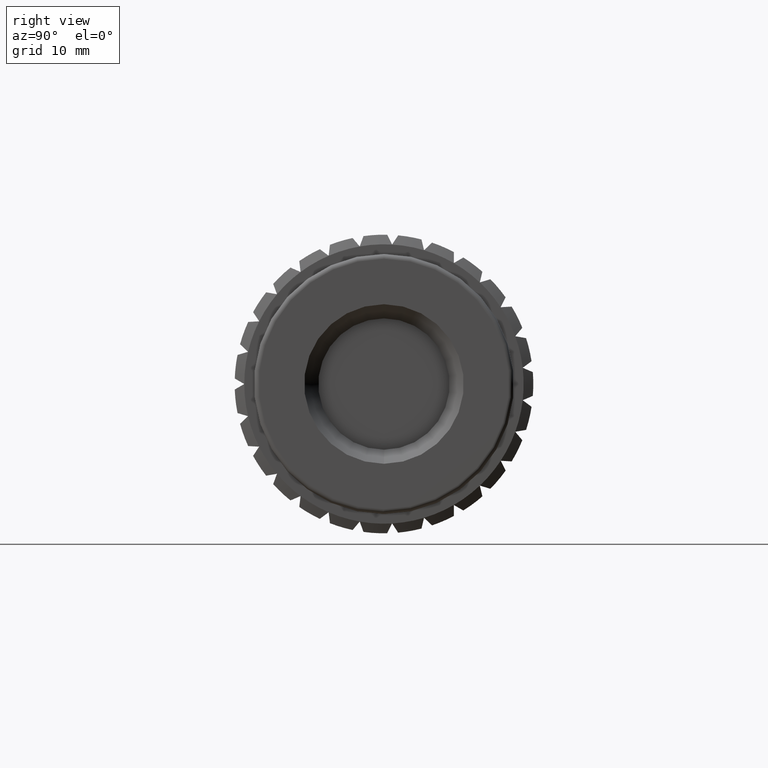
[diagram: clean part render]
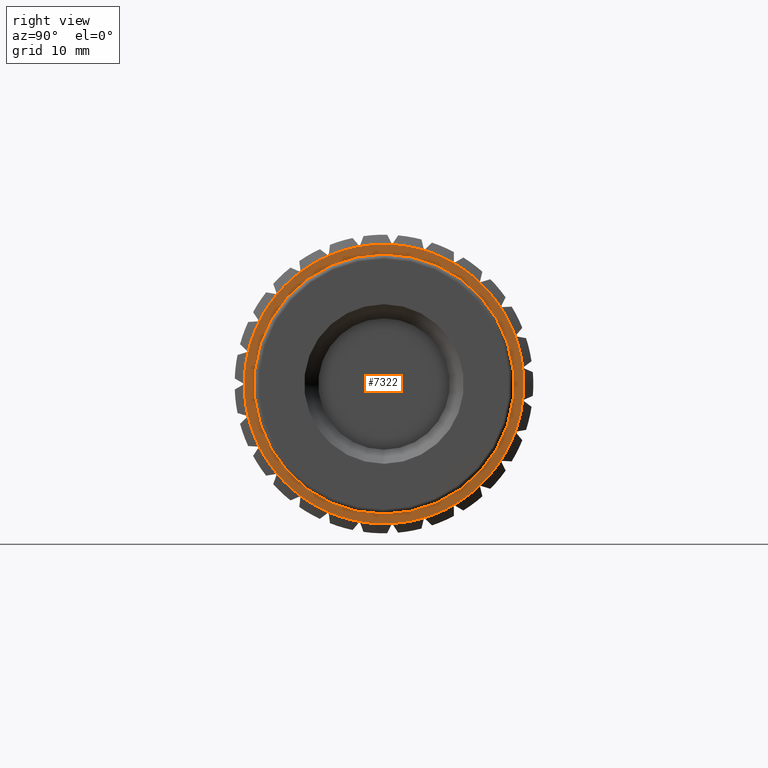
[diagram: same view with one face highlighted and labeled with its STEP entity id]
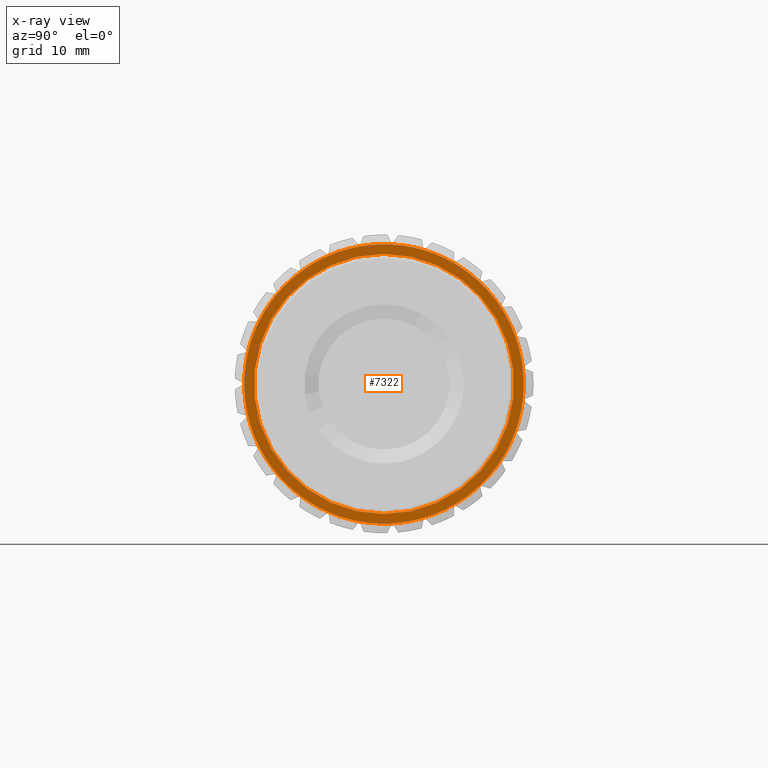
[diagram: x-ray of the same camera — body ghosted, the highlighted face saturated]
A machine part, right view. The second image highlights one B-rep face of the part: STEP entity #7322.
The next image is the same camera in x-ray: the body ghosted, the highlighted face saturated — about 0% of this face is hidden behind the body in this view.
In plain terms, the highlighted planar face has unit normal (-1, 0, 0).
Its self-contained STEP definition (entity closure, byte-faithful):
#1209=PLANE('',#7970);
#1440=FACE_BOUND('',#2182,.T.);
#1616=FACE_OUTER_BOUND('',#2181,.T.);
#2181=EDGE_LOOP('',(#5310,#5311,#5312,#5313,#5314,#5315,#5316,#5317,#5318,
#5319,#5320,#5321,#5322,#5323,#5324,#5325,#5326,#5327,#5328,#5329,#5330,
#5331,#5332,#5333,#5334,#5335,#5336));
#2182=EDGE_LOOP('',(#5337));
#2680=CIRCLE('',#7962,14.5);
#2681=CIRCLE('',#7964,14.5);
#2683=CIRCLE('',#7967,14.5);
#2684=CIRCLE('',#7969,14.5);
#2685=CIRCLE('',#7971,14.5);
#2686=CIRCLE('',#7972,14.5);
#2687=CIRCLE('',#7973,14.5);
#2688=CIRCLE('',#7974,14.5);
#2689=CIRCLE('',#7975,14.5);
#2690=CIRCLE('',#7976,14.5);
#2691=CIRCLE('',#7977,14.5);
#2692=CIRCLE('',#7978,14.5);
#2693=CIRCLE('',#7979,14.5);
#2694=CIRCLE('',#7980,14.5);
#2695=CIRCLE('',#7981,14.5);
#2696=CIRCLE('',#7982,14.5);
#2697=CIRCLE('',#7983,14.5);
#2698=CIRCLE('',#7984,14.5);
#2699=CIRCLE('',#7985,14.5);
#2700=CIRCLE('',#7986,14.5);
#2701=CIRCLE('',#7987,14.5);
#2702=CIRCLE('',#7988,14.5);
#2703=CIRCLE('',#7989,14.5);
#2704=CIRCLE('',#7990,14.5);
#2705=CIRCLE('',#7991,14.5);
#2706=CIRCLE('',#7992,14.5);
#2707=CIRCLE('',#7993,14.5);
#2708=CIRCLE('',#7994,13.5);
#2988=VERTEX_POINT('',#10921);
#3014=VERTEX_POINT('',#11042);
#3016=VERTEX_POINT('',#11056);
#3049=VERTEX_POINT('',#11213);
#3058=VERTEX_POINT('',#11263);
#3069=VERTEX_POINT('',#11317);
#3072=VERTEX_POINT('',#11336);
#3083=VERTEX_POINT('',#11386);
#3102=VERTEX_POINT('',#11467);
#3113=VERTEX_POINT('',#11514);
#3117=VERTEX_POINT('',#11529);
#3128=VERTEX_POINT('',#11584);
#3141=VERTEX_POINT('',#11643);
#3157=VERTEX_POINT('',#11710);
#3168=VERTEX_POINT('',#11757);
#3180=VERTEX_POINT('',#11820);
#3193=VERTEX_POINT('',#11879);
#3209=VERTEX_POINT('',#11946);
#3219=VERTEX_POINT('',#11997);
#3232=VERTEX_POINT('',#12056);
#3248=VERTEX_POINT('',#12123);
#3258=VERTEX_POINT('',#12174);
#3271=VERTEX_POINT('',#12233);
#3293=VERTEX_POINT('',#12336);
#3306=VERTEX_POINT('',#12395);
#3317=VERTEX_POINT('',#12442);
#3334=VERTEX_POINT('',#12524);
#3342=VERTEX_POINT('',#12609);
#4058=EDGE_CURVE('',#3058,#3069,#2680,.T.);
#4059=EDGE_CURVE('',#2988,#3058,#2681,.T.);
#4061=EDGE_CURVE('',#3069,#3072,#2683,.T.);
#4062=EDGE_CURVE('',#3113,#2988,#2684,.T.);
#4063=EDGE_CURVE('',#3014,#3016,#2685,.T.);
#4064=EDGE_CURVE('',#3016,#3317,#2686,.T.);
#4065=EDGE_CURVE('',#3317,#3248,#2687,.T.);
#4066=EDGE_CURVE('',#3248,#3209,#2688,.T.);
#4067=EDGE_CURVE('',#3209,#3157,#2689,.T.);
#4068=EDGE_CURVE('',#3157,#3117,#2690,.T.);
#4069=EDGE_CURVE('',#3117,#3113,#2691,.T.);
#4070=EDGE_CURVE('',#3072,#3083,#2692,.T.);
#4071=EDGE_CURVE('',#3083,#3102,#2693,.T.);
#4072=EDGE_CURVE('',#3102,#3128,#2694,.T.);
#4073=EDGE_CURVE('',#3128,#3168,#2695,.T.);
#4074=EDGE_CURVE('',#3168,#3141,#2696,.T.);
#4075=EDGE_CURVE('',#3141,#3180,#2697,.T.);
#4076=EDGE_CURVE('',#3180,#3193,#2698,.T.);
#4077=EDGE_CURVE('',#3193,#3219,#2699,.T.);
#4078=EDGE_CURVE('',#3219,#3232,#2700,.T.);
#4079=EDGE_CURVE('',#3232,#3258,#2701,.T.);
#4080=EDGE_CURVE('',#3258,#3271,#2702,.T.);
#4081=EDGE_CURVE('',#3271,#3293,#2703,.T.);
#4082=EDGE_CURVE('',#3293,#3306,#2704,.T.);
#4083=EDGE_CURVE('',#3306,#3334,#2705,.T.);
#4084=EDGE_CURVE('',#3334,#3049,#2706,.T.);
#4085=EDGE_CURVE('',#3049,#3014,#2707,.T.);
#4086=EDGE_CURVE('',#3342,#3342,#2708,.T.);
#5310=ORIENTED_EDGE('',*,*,#4063,.T.);
#5311=ORIENTED_EDGE('',*,*,#4064,.T.);
#5312=ORIENTED_EDGE('',*,*,#4065,.T.);
#5313=ORIENTED_EDGE('',*,*,#4066,.T.);
#5314=ORIENTED_EDGE('',*,*,#4067,.T.);
#5315=ORIENTED_EDGE('',*,*,#4068,.T.);
#5316=ORIENTED_EDGE('',*,*,#4069,.T.);
#5317=ORIENTED_EDGE('',*,*,#4062,.T.);
#5318=ORIENTED_EDGE('',*,*,#4059,.T.);
#5319=ORIENTED_EDGE('',*,*,#4058,.T.);
#5320=ORIENTED_EDGE('',*,*,#4061,.T.);
#5321=ORIENTED_EDGE('',*,*,#4070,.T.);
#5322=ORIENTED_EDGE('',*,*,#4071,.T.);
#5323=ORIENTED_EDGE('',*,*,#4072,.T.);
#5324=ORIENTED_EDGE('',*,*,#4073,.T.);
#5325=ORIENTED_EDGE('',*,*,#4074,.T.);
#5326=ORIENTED_EDGE('',*,*,#4075,.T.);
#5327=ORIENTED_EDGE('',*,*,#4076,.T.);
#5328=ORIENTED_EDGE('',*,*,#4077,.T.);
#5329=ORIENTED_EDGE('',*,*,#4078,.T.);
#5330=ORIENTED_EDGE('',*,*,#4079,.T.);
#5331=ORIENTED_EDGE('',*,*,#4080,.T.);
#5332=ORIENTED_EDGE('',*,*,#4081,.T.);
#5333=ORIENTED_EDGE('',*,*,#4082,.T.);
#5334=ORIENTED_EDGE('',*,*,#4083,.T.);
#5335=ORIENTED_EDGE('',*,*,#4084,.T.);
#5336=ORIENTED_EDGE('',*,*,#4085,.T.);
#5337=ORIENTED_EDGE('',*,*,#4086,.F.);
#7322=ADVANCED_FACE('',(#1616,#1440),#1209,.F.);
#7962=AXIS2_PLACEMENT_3D('',#12577,#9319,#9320);
#7964=AXIS2_PLACEMENT_3D('',#12579,#9323,#9324);
#7967=AXIS2_PLACEMENT_3D('',#12582,#9329,#9330);
#7969=AXIS2_PLACEMENT_3D('',#12584,#9333,#9334);
#7970=AXIS2_PLACEMENT_3D('',#12585,#9335,#9336);
#7971=AXIS2_PLACEMENT_3D('',#12586,#9337,#9338);
#7972=AXIS2_PLACEMENT_3D('',#12587,#9339,#9340);
#7973=AXIS2_PLACEMENT_3D('',#12588,#9341,#9342);
#7974=AXIS2_PLACEMENT_3D('',#12589,#9343,#9344);
#7975=AXIS2_PLACEMENT_3D('',#12590,#9345,#9346);
#7976=AXIS2_PLACEMENT_3D('',#12591,#9347,#9348);
#7977=AXIS2_PLACEMENT_3D('',#12592,#9349,#9350);
#7978=AXIS2_PLACEMENT_3D('',#12593,#9351,#9352);
#7979=AXIS2_PLACEMENT_3D('',#12594,#9353,#9354);
#7980=AXIS2_PLACEMENT_3D('',#12595,#9355,#9356);
#7981=AXIS2_PLACEMENT_3D('',#12596,#9357,#9358);
#7982=AXIS2_PLACEMENT_3D('',#12597,#9359,#9360);
#7983=AXIS2_PLACEMENT_3D('',#12598,#9361,#9362);
#7984=AXIS2_PLACEMENT_3D('',#12599,#9363,#9364);
#7985=AXIS2_PLACEMENT_3D('',#12600,#9365,#9366);
#7986=AXIS2_PLACEMENT_3D('',#12601,#9367,#9368);
#7987=AXIS2_PLACEMENT_3D('',#12602,#9369,#9370);
#7988=AXIS2_PLACEMENT_3D('',#12603,#9371,#9372);
#7989=AXIS2_PLACEMENT_3D('',#12604,#9373,#9374);
#7990=AXIS2_PLACEMENT_3D('',#12605,#9375,#9376);
#7991=AXIS2_PLACEMENT_3D('',#12606,#9377,#9378);
#7992=AXIS2_PLACEMENT_3D('',#12607,#9379,#9380);
#7993=AXIS2_PLACEMENT_3D('',#12608,#9381,#9382);
#7994=AXIS2_PLACEMENT_3D('',#12610,#9383,#9384);
#9319=DIRECTION('center_axis',(1.,0.,0.));
#9320=DIRECTION('ref_axis',(0.,0.,-1.));
#9323=DIRECTION('center_axis',(1.,0.,0.));
#9324=DIRECTION('ref_axis',(0.,0.,-1.));
#9329=DIRECTION('center_axis',(1.,0.,0.));
#9330=DIRECTION('ref_axis',(0.,0.,-1.));
#9333=DIRECTION('center_axis',(1.,0.,0.));
#9334=DIRECTION('ref_axis',(0.,0.,-1.));
#9335=DIRECTION('center_axis',(-1.,0.,0.));
#9336=DIRECTION('ref_axis',(0.,0.,1.));
#9337=DIRECTION('center_axis',(1.,0.,0.));
#9338=DIRECTION('ref_axis',(0.,0.,-1.));
#9339=DIRECTION('center_axis',(1.,0.,0.));
#9340=DIRECTION('ref_axis',(0.,0.,-1.));
#9341=DIRECTION('center_axis',(1.,0.,0.));
#9342=DIRECTION('ref_axis',(0.,0.,-1.));
#9343=DIRECTION('center_axis',(1.,0.,0.));
#9344=DIRECTION('ref_axis',(0.,0.,-1.));
#9345=DIRECTION('center_axis',(1.,0.,0.));
#9346=DIRECTION('ref_axis',(0.,0.,-1.));
#9347=DIRECTION('center_axis',(1.,0.,0.));
#9348=DIRECTION('ref_axis',(0.,0.,-1.));
#9349=DIRECTION('center_axis',(1.,0.,0.));
#9350=DIRECTION('ref_axis',(0.,0.,-1.));
#9351=DIRECTION('center_axis',(1.,0.,0.));
#9352=DIRECTION('ref_axis',(0.,0.,-1.));
#9353=DIRECTION('center_axis',(1.,0.,0.));
#9354=DIRECTION('ref_axis',(0.,0.,-1.));
#9355=DIRECTION('center_axis',(1.,0.,0.));
#9356=DIRECTION('ref_axis',(0.,0.,-1.));
#9357=DIRECTION('center_axis',(1.,0.,0.));
#9358=DIRECTION('ref_axis',(0.,0.,-1.));
#9359=DIRECTION('center_axis',(1.,0.,0.));
#9360=DIRECTION('ref_axis',(0.,0.,-1.));
#9361=DIRECTION('center_axis',(1.,0.,0.));
#9362=DIRECTION('ref_axis',(0.,0.,-1.));
#9363=DIRECTION('center_axis',(1.,0.,0.));
#9364=DIRECTION('ref_axis',(0.,0.,-1.));
#9365=DIRECTION('center_axis',(1.,0.,0.));
#9366=DIRECTION('ref_axis',(0.,0.,-1.));
#9367=DIRECTION('center_axis',(1.,0.,0.));
#9368=DIRECTION('ref_axis',(0.,0.,-1.));
#9369=DIRECTION('center_axis',(1.,0.,0.));
#9370=DIRECTION('ref_axis',(0.,0.,-1.));
#9371=DIRECTION('center_axis',(1.,0.,0.));
#9372=DIRECTION('ref_axis',(0.,0.,-1.));
#9373=DIRECTION('center_axis',(1.,0.,0.));
#9374=DIRECTION('ref_axis',(0.,0.,-1.));
#9375=DIRECTION('center_axis',(1.,0.,0.));
#9376=DIRECTION('ref_axis',(0.,0.,-1.));
#9377=DIRECTION('center_axis',(1.,0.,0.));
#9378=DIRECTION('ref_axis',(0.,0.,-1.));
#9379=DIRECTION('center_axis',(1.,0.,0.));
#9380=DIRECTION('ref_axis',(0.,0.,-1.));
#9381=DIRECTION('center_axis',(1.,0.,0.));
#9382=DIRECTION('ref_axis',(0.,0.,-1.));
#9383=DIRECTION('center_axis',(1.,0.,0.));
#9384=DIRECTION('ref_axis',(0.,0.,-1.));
#10921=CARTESIAN_POINT('',(31.12,0.843100019201899,14.4754682949334));
#11042=CARTESIAN_POINT('',(31.12,13.6255430013957,-4.95929207822219));
#11056=CARTESIAN_POINT('',(31.12,14.4019561872582,-1.68334725481584));
#11213=CARTESIAN_POINT('',(31.12,12.1145732654876,-7.96788018202668));
#11263=CARTESIAN_POINT('',(31.12,-2.51789857617049,14.279712418677));
#11317=CARTESIAN_POINT('',(31.12,-5.74315660756777,13.314133549764));
#11336=CARTESIAN_POINT('',(31.12,-8.6587995796904,11.6307862949481));
#11386=CARTESIAN_POINT('',(31.12,-11.1076444252252,9.32042034045482));
#11467=CARTESIAN_POINT('',(31.12,-12.9576732846895,6.5075881129067));
#11514=CARTESIAN_POINT('',(31.12,4.15864687431081,13.8908479285746));
#11529=CARTESIAN_POINT('',(31.12,7.25,12.5573683548744));
#11584=CARTESIAN_POINT('',(31.12,-14.1091506234074,3.34393012576538));
#11643=CARTESIAN_POINT('',(31.12,-14.1091506234074,-3.34393012576538));
#11710=CARTESIAN_POINT('',(31.12,9.95050374909663,10.5469178028092));
#11757=CARTESIAN_POINT('',(31.12,-14.5,4.33680868994202E-16));
#11820=CARTESIAN_POINT('',(31.12,-12.9576732846895,-6.5075881129067));
#11879=CARTESIAN_POINT('',(31.12,-11.1076444252252,-9.32042034045481));
#11946=CARTESIAN_POINT('',(31.12,12.1145732654876,7.96788018202669));
#11997=CARTESIAN_POINT('',(31.12,-8.65879957969039,-11.6307862949481));
#12056=CARTESIAN_POINT('',(31.12,-5.74315660756777,-13.314133549764));
#12123=CARTESIAN_POINT('',(31.12,13.6255430013957,4.9592920782222));
#12174=CARTESIAN_POINT('',(31.12,-2.51789857617049,-14.279712418677));
#12233=CARTESIAN_POINT('',(31.12,0.843100019201898,-14.4754682949334));
#12336=CARTESIAN_POINT('',(31.12,4.1586468743108,-13.8908479285746));
#12395=CARTESIAN_POINT('',(31.12,7.24999999999999,-12.5573683548744));
#12442=CARTESIAN_POINT('',(31.12,14.4019561872582,1.68334725481584));
#12524=CARTESIAN_POINT('',(31.12,9.95050374909663,-10.5469178028092));
#12577=CARTESIAN_POINT('Origin',(31.12,0.,0.));
#12579=CARTESIAN_POINT('Origin',(31.12,0.,0.));
#12582=CARTESIAN_POINT('Origin',(31.12,0.,0.));
#12584=CARTESIAN_POINT('Origin',(31.12,0.,0.));
#12585=CARTESIAN_POINT('Origin',(31.12,14.5,0.));
#12586=CARTESIAN_POINT('Origin',(31.12,0.,0.));
#12587=CARTESIAN_POINT('Origin',(31.12,0.,0.));
#12588=CARTESIAN_POINT('Origin',(31.12,0.,0.));
#12589=CARTESIAN_POINT('Origin',(31.12,0.,0.));
#12590=CARTESIAN_POINT('Origin',(31.12,0.,0.));
#12591=CARTESIAN_POINT('Origin',(31.12,0.,0.));
#12592=CARTESIAN_POINT('Origin',(31.12,0.,0.));
#12593=CARTESIAN_POINT('Origin',(31.12,0.,0.));
#12594=CARTESIAN_POINT('Origin',(31.12,0.,0.));
#12595=CARTESIAN_POINT('Origin',(31.12,0.,0.));
#12596=CARTESIAN_POINT('Origin',(31.12,0.,0.));
#12597=CARTESIAN_POINT('Origin',(31.12,0.,0.));
#12598=CARTESIAN_POINT('Origin',(31.12,0.,0.));
#12599=CARTESIAN_POINT('Origin',(31.12,0.,0.));
#12600=CARTESIAN_POINT('Origin',(31.12,0.,0.));
#12601=CARTESIAN_POINT('Origin',(31.12,0.,0.));
#12602=CARTESIAN_POINT('Origin',(31.12,0.,0.));
#12603=CARTESIAN_POINT('Origin',(31.12,0.,0.));
#12604=CARTESIAN_POINT('Origin',(31.12,0.,0.));
#12605=CARTESIAN_POINT('Origin',(31.12,0.,0.));
#12606=CARTESIAN_POINT('Origin',(31.12,0.,0.));
#12607=CARTESIAN_POINT('Origin',(31.12,0.,0.));
#12608=CARTESIAN_POINT('Origin',(31.12,0.,0.));
#12609=CARTESIAN_POINT('',(31.12,0.,-13.5));
#12610=CARTESIAN_POINT('Origin',(31.12,0.,0.));